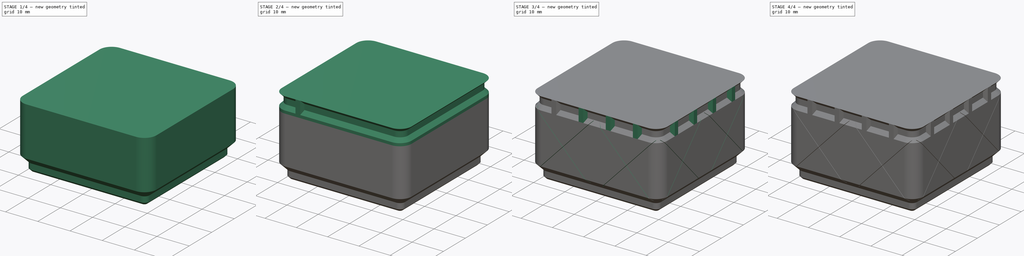
[diagram: build sequence overview — one tinted view per stage of 4, left to right]
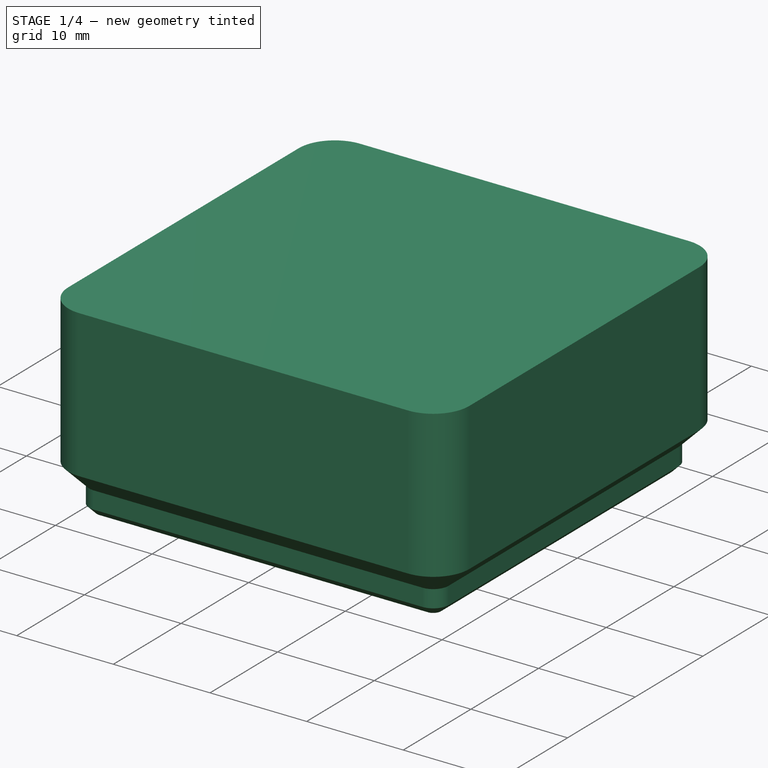
[diagram: stage 1 of 4 — iso view after this stage's code; geometry added in this stage tinted green]
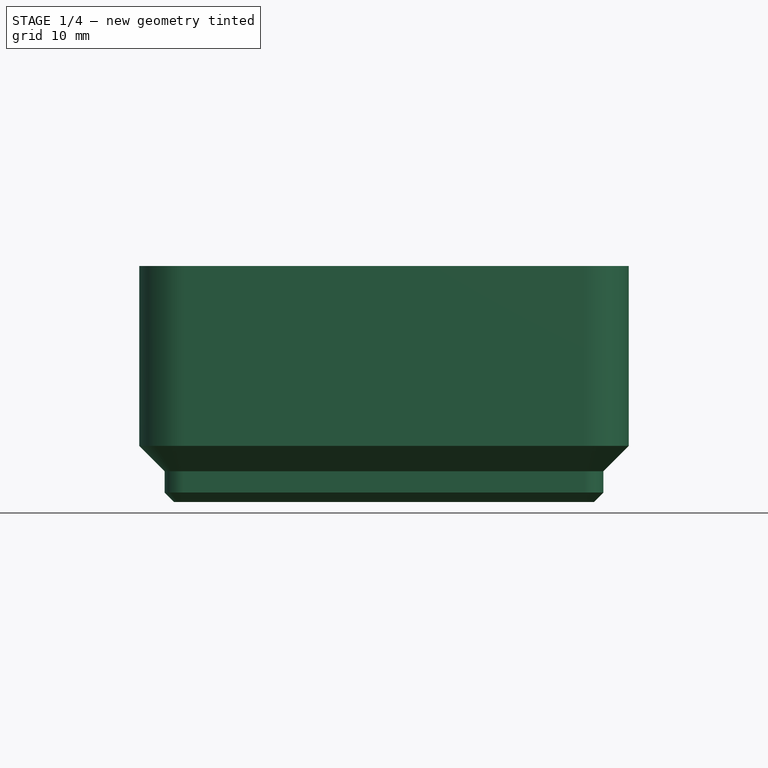
[diagram: stage 1 of 4 — front view after this stage's code; geometry added in this stage tinted green]
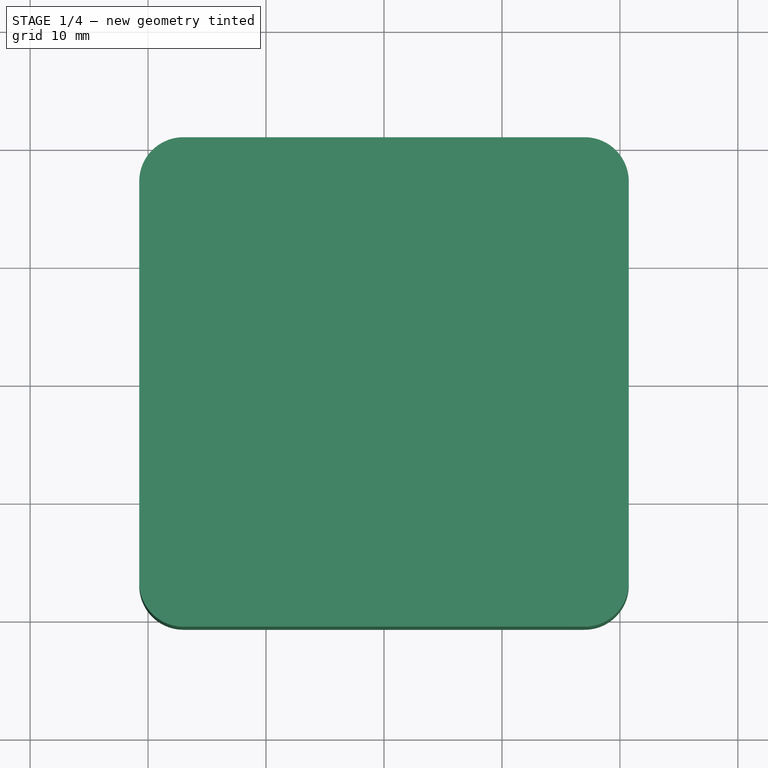
[diagram: stage 1 of 4 — top view after this stage's code; geometry added in this stage tinted green]
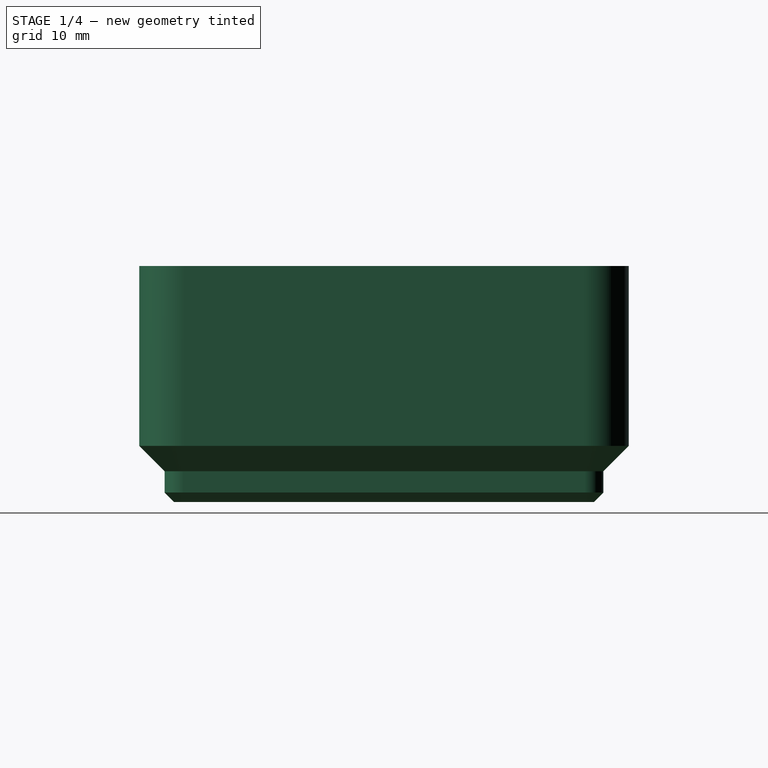
[diagram: stage 1 of 4 — right view after this stage's code; geometry added in this stage tinted green]
FCSTD DOCUMENT  (FreeCAD 0.21R33771 (Git))
Label: Parametric_VaseMode-Bin
License: All rights reserved
LicenseURL: http://en.wikipedia.org/wiki/All_rights_reserved
objects: Sketcher::SketchObject×10, PartDesign::Mirrored×5, PartDesign::Pad×3, PartDesign::Pocket×3, PartDesign::MultiTransform×2, Spreadsheet::Sheet×1, PartDesign::SubtractivePipe×1, PartDesign::AdditivePipe×1, PartDesign::Plane×1, PartDesign::LinearPattern×1, PartDesign::Body×1
note: 36 computed .brp shape members not serialized (recipe doc carries the construction recipe); baked Part::Feature solids carry a one-line shape summary decoded from their .brp

FEATURE [Spreadsheet::Sheet] Spreadsheet  label="data"
  cells = A2='z_units; B2(z_units)=3; C2='     Minimum value is 2; A3='wall_thickness; B3(wall_thickness)==0.75 mm; C3='     Whatever you have set in your slicer - Typically 110-125% of nozzle diameter; A4='toggle_stable_walls; B4(toggle_stable_walls)=1; C4='     Optional stabilizing feature for the side walls; A5='toggle_stable_lip; B5(toggle_stable_lip)=1; C5='     Optional stabilizing feature for the top lip; A6='toggle_divider; B6(toggle_divider)=1; C6='     Optional middle divider vane; A7='toggle_tab; B7(toggle_tab)=0; C7='     Optional label tab; A9='eq_walls; B9(eq_walls)==toggle_stable_walls == 1 ? bin_xy / 2 : 10000; C9='     DON'T BREAK THESE FORMULAS; A10='eq_lip; B10(eq_lip)==toggle_stable_lip == 1 ? col_height : col_height * -0.0001; A11='eq_div; B11(eq_div)==toggle_divider == 1 ? 0 mm : 500 mm; A12='eq_tab; B12(eq_tab)==toggle_tab == 1 ? 0 mm : 500 mm; A13='z_unit_val; B13(z_unit_val)==7 mm; A14='bin_xy; B14(bin_xy)==41.5 mm; A15='offset; B15(offset)==0.25 mm; A16='bin_mid; B16(bin_mid)==37.2 mm; A17='top_feature_height; B17(top_feature_height)==4 mm; A18='top_feature_offset; B18(top_feature_offset)==3.1 mm; A19='btm_feature_offset; B19(btm_feature_offset)==2.6 mm; A20='corner_dia; B20(corner_dia)==7.5 mm; A21='support_rad; B21(support_rad)==1.5 mm; A22='cut_dia; B22(cut_dia)==0.1 mm; C22='     Width of the wall-stabilizer feature. Playing around with this is kinda fun; A23='registration_face_depth; B23(registration_face_depth)==bin_xy / 2 - (bin_mid / 2 + offset + wall_thickness); A24='col_height; B24(col_height)==btm_mid + registration_face_depth * 2; A25='tab_length; B25(tab_length)==10 mm; A26='total_bin_height; B26(total_bin_height)==z_unit_val * z_units + top_feature_height; A27='btm_mid; B27(btm_mid)==1.8 mm
FEATURE [Sketcher::SketchObject] Sketch  label="Btm_profile_sk"
  FullyConstrained = true
  MapMode = 5
  Placement = pos=(0,0,0) rot=(1,0,0;1.5708rad)
  Support = -> [XZ_Plane]
  expr: Constraints[9] = <<data>>.bin_xy / 2
  sketch-geometry (5):
    g0: LineSegment StartX=-17.8 StartY=0 StartZ=0 EndX=-18.6 EndY=0.8 EndZ=0
    g1: LineSegment StartX=-18.6 StartY=0.8 StartZ=0 EndX=-18.6 EndY=2.6 EndZ=0
    g2: LineSegment StartX=-18.6 StartY=2.6 StartZ=0 EndX=-20.75 EndY=4.75 EndZ=0
    g3: LineSegment StartX=-20.75 StartY=4.75 StartZ=0 EndX=-20.75 EndY=0 EndZ=0
    g4: LineSegment StartX=-20.75 StartY=0 StartZ=0 EndX=-17.8 EndY=0 EndZ=0
  constraints (15):
    c: PointOnObject(g0,g-1)
    c: Coincident(g0,g1)
    c: Vertical(g1)
    c: Coincident(g1,g2)
    c: Angle(g-2,g0) = 0.785398
    c: Parallel(g0,g2)
    c: DistanceY(g0,g0) = 0.8
    c: DistanceY(g1,g2) = 2.15
    c: DistanceY(g1,g1) = 1.8
    c: DistanceX(g2,g-1) = 20.75
    c: Coincident(g2,g3)
    c: PointOnObject(g3,g-1)
    c: Vertical(g3)
    c: Coincident(g3,g4)
    c: Coincident(g4,g0)
FEATURE [Sketcher::SketchObject] Sketch001  label="Btm_path_sk"
  FullyConstrained = true
  MapMode = 5
  Support = -> [XY_Plane]
  expr: Constraints[21] = <<data>>.bin_xy / 2
  sketch-geometry (10):
    g0: ArcOfCircle CenterX=-17 CenterY=17 CenterZ=0 NormalX=0 NormalY=0 NormalZ=1 AngleXU=0 Radius=3.75 StartAngle=1.5708 EndAngle=3.14159
    g1: LineSegment StartX=-17 StartY=20.75 StartZ=0 EndX=17 EndY=20.75 EndZ=0
    g2: ArcOfCircle CenterX=17 CenterY=17 CenterZ=0 NormalX=0 NormalY=0 NormalZ=1 AngleXU=0 Radius=3.75 StartAngle=5e-16 EndAngle=1.5708
    g3: LineSegment StartX=20.75 StartY=17 StartZ=0 EndX=20.75 EndY=-17 EndZ=0
    g4: ArcOfCircle CenterX=17 CenterY=-17 CenterZ=0 NormalX=0 NormalY=0 NormalZ=1 AngleXU=0 Radius=3.75 StartAngle=4.71239 EndAngle=6.28319
    g5: LineSegment StartX=17 StartY=-20.75 StartZ=0 EndX=-17 EndY=-20.75 EndZ=0
    g6: ArcOfCircle CenterX=-17 CenterY=-17 CenterZ=0 NormalX=0 NormalY=0 NormalZ=1 AngleXU=0 Radius=3.75 StartAngle=3.14159 EndAngle=4.71239
    g7: LineSegment StartX=-20.75 StartY=-17 StartZ=0 EndX=-20.75 EndY=17 EndZ=0
    g8: GeomPoint X=-20.75 Y=20.75 Z=0
    g9: GeomPoint X=20.75 Y=-20.75 Z=0
  constraints (23):
    c: Tangent(g0,g1) = 1.5708
    c: Tangent(g1,g2) = 1.5708
    c: Tangent(g2,g3) = 1.5708
    c: Tangent(g3,g4) = 1.5708
    c: Tangent(g4,g5) = 1.5708
    c: Tangent(g5,g6) = 1.5708
    c: Tangent(g6,g7) = 1.5708
    c: Tangent(g7,g0) = 1.5708
    c: Horizontal(g1)
    c: Horizontal(g5)
    c: Vertical(g3)
    c: Vertical(g7)
    c: Equal(g0,g2)
    c: Equal(g2,g4)
    c: Equal(g4,g6)
    c: PointOnObject(g8,g1)
    c: PointOnObject(g8,g7)
    c: PointOnObject(g9,g3)
    c: PointOnObject(g9,g5)
    c: Symmetric(g2,g6,g-1)
    c: Diameter(g0) = 7.5
    c: DistanceX(g0,g-1) = 20.75
    c: Equal(g1,g3)
FEATURE [Sketcher::SketchObject] Sketch002  label="Bin_body_sk"
  FullyConstrained = true
  MapMode = 5
  Support = -> [XY_Plane]
  expr: Constraints[21] = <<data>>.bin_xy / 2
  sketch-geometry (10):
    g0: ArcOfCircle CenterX=-17 CenterY=17 CenterZ=0 NormalX=0 NormalY=0 NormalZ=1 AngleXU=0 Radius=3.75 StartAngle=1.5708 EndAngle=3.14159
    g1: LineSegment StartX=-17 StartY=20.75 StartZ=0 EndX=17 EndY=20.75 EndZ=0
    g2: ArcOfCircle CenterX=17 CenterY=17 CenterZ=0 NormalX=0 NormalY=0 NormalZ=1 AngleXU=0 Radius=3.75 StartAngle=5e-16 EndAngle=1.5708
    g3: LineSegment StartX=20.75 StartY=17 StartZ=0 EndX=20.75 EndY=-17 EndZ=0
    g4: ArcOfCircle CenterX=17 CenterY=-17 CenterZ=0 NormalX=0 NormalY=0 NormalZ=1 AngleXU=0 Radius=3.75 StartAngle=4.71239 EndAngle=6.28319
    g5: LineSegment StartX=17 StartY=-20.75 StartZ=0 EndX=-17 EndY=-20.75 EndZ=0
    g6: ArcOfCircle CenterX=-17 CenterY=-17 CenterZ=0 NormalX=0 NormalY=0 NormalZ=1 AngleXU=0 Radius=3.75 StartAngle=3.14159 EndAngle=4.71239
    g7: LineSegment StartX=-20.75 StartY=-17 StartZ=0 EndX=-20.75 EndY=17 EndZ=0
    g8: GeomPoint X=-20.75 Y=20.75 Z=0
    g9: GeomPoint X=20.75 Y=-20.75 Z=0
  constraints (23):
    c: Tangent(g0,g1) = 1.5708
    c: Tangent(g1,g2) = 1.5708
    c: Tangent(g2,g3) = 1.5708
    c: Tangent(g3,g4) = 1.5708
    c: Tangent(g4,g5) = 1.5708
    c: Tangent(g5,g6) = 1.5708
    c: Tangent(g6,g7) = 1.5708
    c: Tangent(g7,g0) = 1.5708
    c: Horizontal(g1)
    c: Horizontal(g5)
    c: Vertical(g3)
    c: Vertical(g7)
    c: Equal(g0,g2)
    c: Equal(g2,g4)
    c: Equal(g4,g6)
    c: PointOnObject(g8,g1)
    c: PointOnObject(g8,g7)
    c: PointOnObject(g9,g3)
    c: PointOnObject(g9,g5)
    c: Symmetric(g2,g6,g-1)
    c: Diameter(g0) = 7.5
    c: DistanceX(g0,g-1) = 20.75
    c: Equal(g1,g3)
FEATURE [PartDesign::Pad] Pad  label="Bin_body_pd"
  Direction = (0,0,1)
  Length = 20
  Length2 = 10
  Profile = -> Sketch002
  ReferenceAxis = -> Sketch002 [N_Axis]
  Type = 0
  expr: Length = <<data>>.z_units * <<data>>.z_unit_val - 1 mm
FEATURE [PartDesign::SubtractivePipe] SubtractivePipe  label="Btm_profile_sp"
  AuxilleryCurvelinear = true
  AuxillerySpineTangent = false
  BaseFeature = -> Pad
  Binormal = (0,0,0)
  Mode = 0
  Profile = -> Sketch
  Spine = -> Sketch001
  SpineTangent = false
  Transformation = 0
  Transition = 0
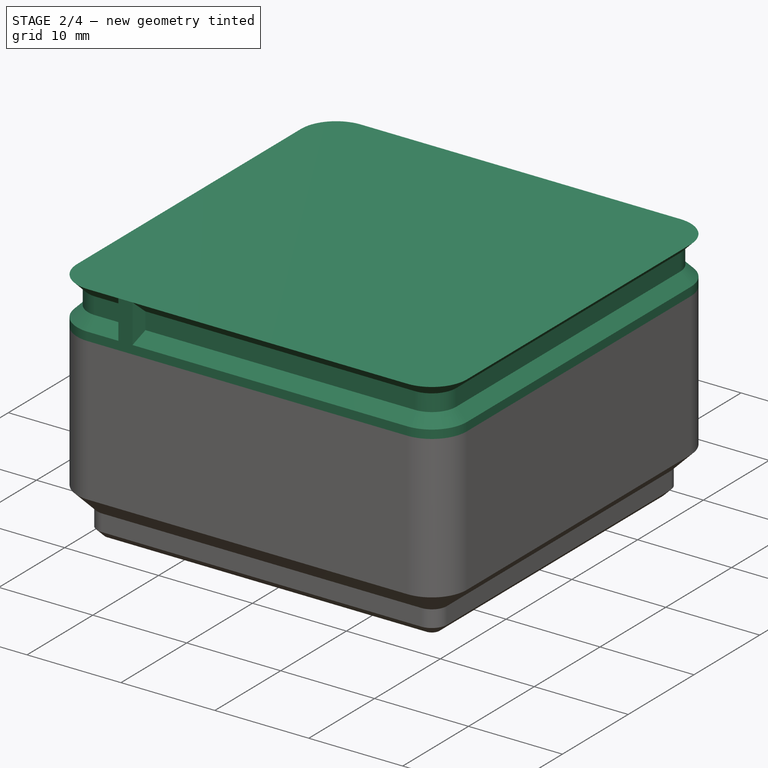
[diagram: stage 2 of 4 — iso view after this stage's code; geometry added in this stage tinted green]
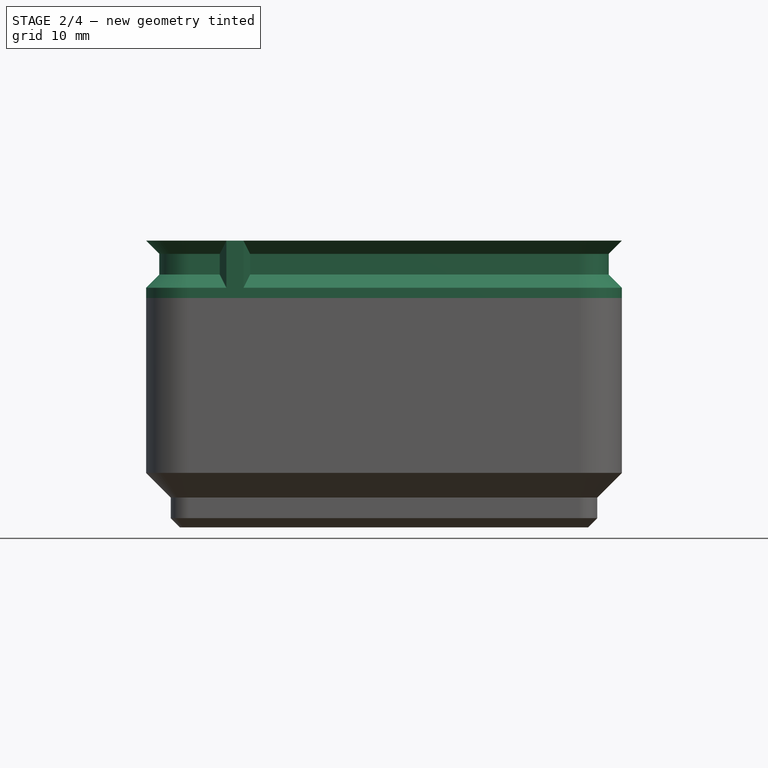
[diagram: stage 2 of 4 — front view after this stage's code; geometry added in this stage tinted green]
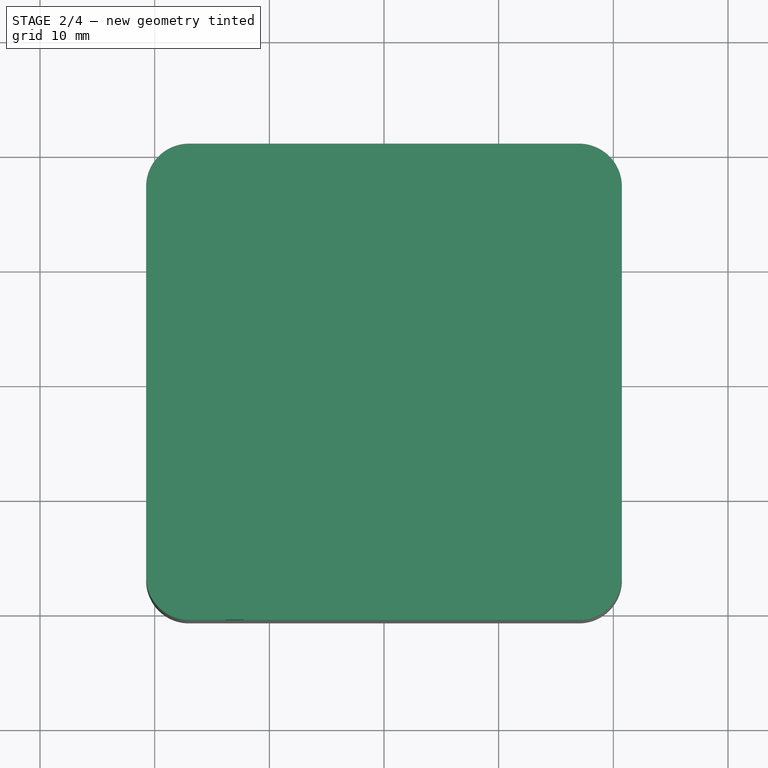
[diagram: stage 2 of 4 — top view after this stage's code; geometry added in this stage tinted green]
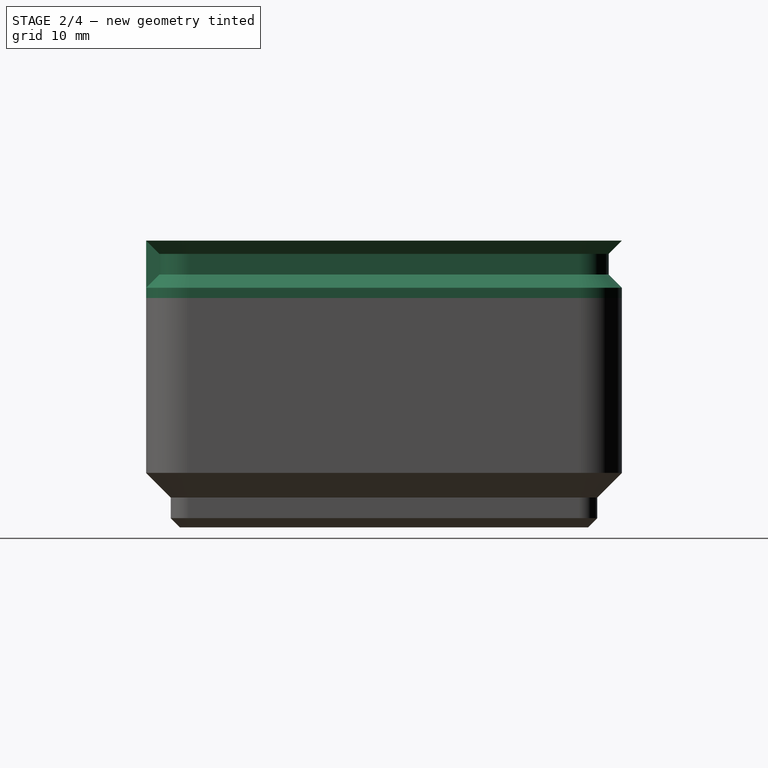
[diagram: stage 2 of 4 — right view after this stage's code; geometry added in this stage tinted green]
FEATURE [Sketcher::SketchObject] Sketch012  label="Top_profile_sk"
  FullyConstrained = true
  MapMode = 5
  Placement = pos=(0,0,0) rot=(1,0,0;1.5708rad)
  Support = -> [XZ_Plane]
  expr: .Constraints.top_edge = <<data>>.total_bin_height
  expr: Constraints[19] = <<data>>.z_units * <<data>>.z_unit_val - 1 mm
  expr: Constraints[20] = <<data>>.registration_face_depth
  expr: Constraints[4] = <<data>>.bin_xy / 2
  sketch-geometry (7):
    g0: LineSegment StartX=-20.75 StartY=20.9 StartZ=0 EndX=-19.6 EndY=22.05 EndZ=0
    g1: LineSegment StartX=-19.6 StartY=22.05 StartZ=0 EndX=-19.6 EndY=23.85 EndZ=0
    g2: LineSegment StartX=-19.6 StartY=23.85 StartZ=0 EndX=-20.75 EndY=25 EndZ=0
    g3: LineSegment StartX=-20.75 StartY=25 StartZ=0 EndX=-17.15 EndY=25 EndZ=0
    g4: LineSegment StartX=-17.15 StartY=25 StartZ=0 EndX=-17.15 EndY=20 EndZ=0
    g5: LineSegment StartX=-20.75 StartY=20.9 StartZ=0 EndX=-20.75 EndY=20 EndZ=0
    g6: LineSegment StartX=-20.75 StartY=20 StartZ=0 EndX=-17.15 EndY=20 EndZ=0
  constraints (21):
    c: Coincident(g0,g1)
    c: Vertical(g1)
    c: Angle(g0,g-2) = 0.785398
    c: DistanceY(g1,g1) = 1.8
    c: DistanceX(g0,g-1) = 20.75
    c: Coincident(g2,g1)
    c: Perpendicular(g0,g2)
    c: Vertical(g2,g0)
    c: DistanceY(g-1,g2) = 25  'top_edge'
    c: Coincident(g2,g3)
    c: Horizontal(g3)
    c: Coincident(g3,g4)
    c: Vertical(g4)
    c: DistanceX(g3,g3) = 3.6
    c: Coincident(g0,g5)
    c: Vertical(g5)
    c: Coincident(g5,g6)
    c: Coincident(g6,g4)
    c: Horizontal(g6)
    c: DistanceY(g-1,g4) = 20
    c: DistanceX(g0,g0) = 1.15
FEATURE [Sketcher::SketchObject] Sketch013  label="Top_path_sk"
  AttachmentOffset = pos=(0,0,25) rot=(0,0,1;0rad)
  FullyConstrained = true
  MapMode = 5
  Placement = pos=(0,0,25) rot=(0,0,1;0rad)
  Support = -> [XY_Plane]
  expr: .AttachmentOffset.Base.z = Sketch012.Constraints.top_edge
  expr: Constraints[21] = <<data>>.bin_xy / 2
  sketch-geometry (10):
    g0: ArcOfCircle CenterX=-17 CenterY=17 CenterZ=0 NormalX=0 NormalY=0 NormalZ=1 AngleXU=0 Radius=3.75 StartAngle=1.5708 EndAngle=3.14159
    g1: LineSegment StartX=-17 StartY=20.75 StartZ=0 EndX=17 EndY=20.75 EndZ=0
    g2: ArcOfCircle CenterX=17 CenterY=17 CenterZ=0 NormalX=0 NormalY=0 NormalZ=1 AngleXU=0 Radius=3.75 StartAngle=5e-16 EndAngle=1.5708
    g3: LineSegment StartX=20.75 StartY=17 StartZ=0 EndX=20.75 EndY=-17 EndZ=0
    g4: ArcOfCircle CenterX=17 CenterY=-17 CenterZ=0 NormalX=0 NormalY=0 NormalZ=1 AngleXU=0 Radius=3.75 StartAngle=4.71239 EndAngle=6.28319
    g5: LineSegment StartX=17 StartY=-20.75 StartZ=0 EndX=-17 EndY=-20.75 EndZ=0
    g6: ArcOfCircle CenterX=-17 CenterY=-17 CenterZ=0 NormalX=0 NormalY=0 NormalZ=1 AngleXU=0 Radius=3.75 StartAngle=3.14159 EndAngle=4.71239
    g7: LineSegment StartX=-20.75 StartY=-17 StartZ=0 EndX=-20.75 EndY=17 EndZ=0
    g8: GeomPoint X=-20.75 Y=20.75 Z=0
    g9: GeomPoint X=20.75 Y=-20.75 Z=0
  constraints (23):
    c: Tangent(g0,g1) = 1.5708
    c: Tangent(g1,g2) = 1.5708
    c: Tangent(g2,g3) = 1.5708
    c: Tangent(g3,g4) = 1.5708
    c: Tangent(g4,g5) = 1.5708
    c: Tangent(g5,g6) = 1.5708
    c: Tangent(g6,g7) = 1.5708
    c: Tangent(g7,g0) = 1.5708
    c: Horizontal(g1)
    c: Horizontal(g5)
    c: Vertical(g3)
    c: Vertical(g7)
    c: Equal(g0,g2)
    c: Equal(g2,g4)
    c: Equal(g4,g6)
    c: PointOnObject(g8,g1)
    c: PointOnObject(g8,g7)
    c: PointOnObject(g9,g3)
    c: PointOnObject(g9,g5)
    c: Symmetric(g2,g6,g-1)
    c: Diameter(g0) = 7.5
    c: DistanceX(g0,g-1) = 20.75
    c: Equal(g1,g3)
FEATURE [PartDesign::AdditivePipe] AdditivePipe  label="Top_profile_ap"
  AuxilleryCurvelinear = true
  AuxillerySpineTangent = false
  BaseFeature = -> SubtractivePipe
  Binormal = (0,0,0)
  Mode = 0
  Profile = -> Sketch012
  Spine = -> Sketch013
  SpineTangent = false
  Transformation = 0
  Transition = 0
FEATURE [Sketcher::SketchObject] Sketch014
  AttachmentOffset = pos=(0,0,25) rot=(0,0,1;0rad)
  FullyConstrained = true
  MapMode = 5
  Placement = pos=(0,0,25) rot=(0,0,1;0rad)
  Support = -> [XY_Plane]
  expr: .AttachmentOffset.Base.z = Sketch012.Constraints.top_edge
  sketch-geometry (4):
    g0: LineSegment StartX=-18 StartY=18 StartZ=0 EndX=18 EndY=18 EndZ=0
    g1: LineSegment StartX=18 StartY=18 StartZ=0 EndX=18 EndY=-18 EndZ=0
    g2: LineSegment StartX=18 StartY=-18 StartZ=0 EndX=-18 EndY=-18 EndZ=0
    g3: LineSegment StartX=-18 StartY=-18 StartZ=0 EndX=-18 EndY=18 EndZ=0
  constraints (11):
    c: Coincident(g0,g1)
    c: Coincident(g1,g2)
    c: Coincident(g2,g3)
    c: Coincident(g3,g0)
    c: Horizontal(g0)
    c: Horizontal(g2)
    c: Vertical(g1)
    c: Vertical(g3)
    c: Symmetric(g0,g2,g-1)
    c: Equal(g0,g1)
    c: DistanceX(g0,g0) = 36
FEATURE [PartDesign::Pad] Pad001  label="Top_fill_pd"
  BaseFeature = -> AdditivePipe
  Direction = (0,0,1)
  Length = 11
  Length2 = 10
  Profile = -> Sketch014
  ReferenceAxis = -> Sketch014 [N_Axis]
  Reversed = true
  Type = 0
  expr: Length = <<data>>.z_unit_val + Spreadsheet.top_feature_height
FEATURE [Sketcher::SketchObject] Sketch015  label="Support_col_sk"
  AttachmentOffset = pos=(-13,0,20.9) rot=(0,0,1;0rad)
  FullyConstrained = true
  MapMode = 5
  Placement = pos=(-13,0,20.9) rot=(0,0,1;0rad)
  Support = -> [XY_Plane]
  expr: .AttachmentOffset.Base.z = <<data>>.z_units * <<data>>.z_unit_val + <<data>>.top_feature_height - <<data>>.col_height
  expr: Constraints[10] = <<data>>.support_rad
  expr: Constraints[11] = <<data>>.support_rad * 3
  expr: Constraints[12] = <<data>>.support_rad
  expr: Constraints[15] = <<data>>.support_rad
  expr: Constraints[9] = <<data>>.bin_xy / 2 - <<data>>.support_rad
  sketch-geometry (6):
    g0: LineSegment StartX=0.75 StartY=-20.75 StartZ=0 EndX=2.25 EndY=-17.75 EndZ=0
    g1: LineSegment StartX=2.25 StartY=-17.75 StartZ=0 EndX=-2.25 EndY=-17.75 EndZ=0
    g2: LineSegment StartX=-2.25 StartY=-17.75 StartZ=0 EndX=-0.75 EndY=-20.75 EndZ=0
    g3: Circle CenterX=0 CenterY=-19.25 CenterZ=0 NormalX=0 NormalY=0 NormalZ=1 AngleXU=0 Radius=2.70416
    g4: LineSegment StartX=-0.75 StartY=-20.75 StartZ=0 EndX=0.75 EndY=-20.75 EndZ=0
    g5: GeomPoint X=0 Y=-17.75 Z=0
  constraints (16):
    c: Coincident(g0,g1)
    c: Coincident(g1,g2)
    c: PointOnObject(g0,g3)
    c: PointOnObject(g1,g3)
    c: Horizontal(g1)
    c: Coincident(g4,g2)
    c: Coincident(g4,g0)
    c: Symmetric(g0,g2,g-2)
    c: PointOnObject(g3,g-2)
    c: DistanceY(g3,g-1) = 19.25
    c: DistanceY(g0,g3) = 1.5
    c: DistanceX(g1,g1) = 4.5
    c: DistanceX(g4,g4) = 1.5
    c: PointOnObject(g5,g-2)
    c: PointOnObject(g5,g1)
    c: DistanceY(g3,g5) = 1.5
FEATURE [PartDesign::Pad] Pad002  label="Support_col_pd"
  BaseFeature = -> Pad001
  Direction = (0,0,1)
  Length = 4.1
  Length2 = 10
  Profile = -> Sketch015
  ReferenceAxis = -> Sketch015 [N_Axis]
  Type = 0
  expr: Length = <<data>>.eq_lip
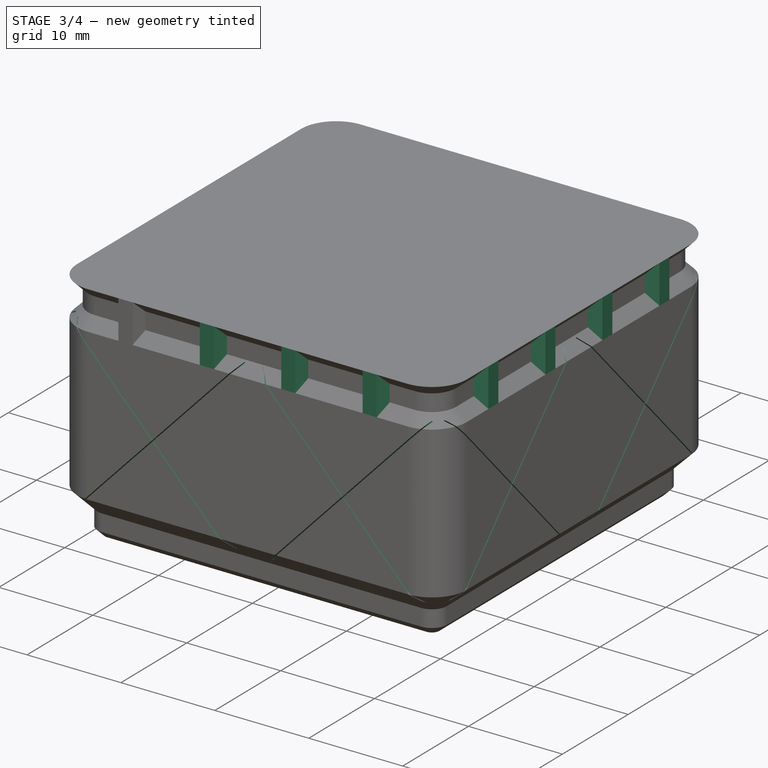
[diagram: stage 3 of 4 — iso view after this stage's code; geometry added in this stage tinted green]
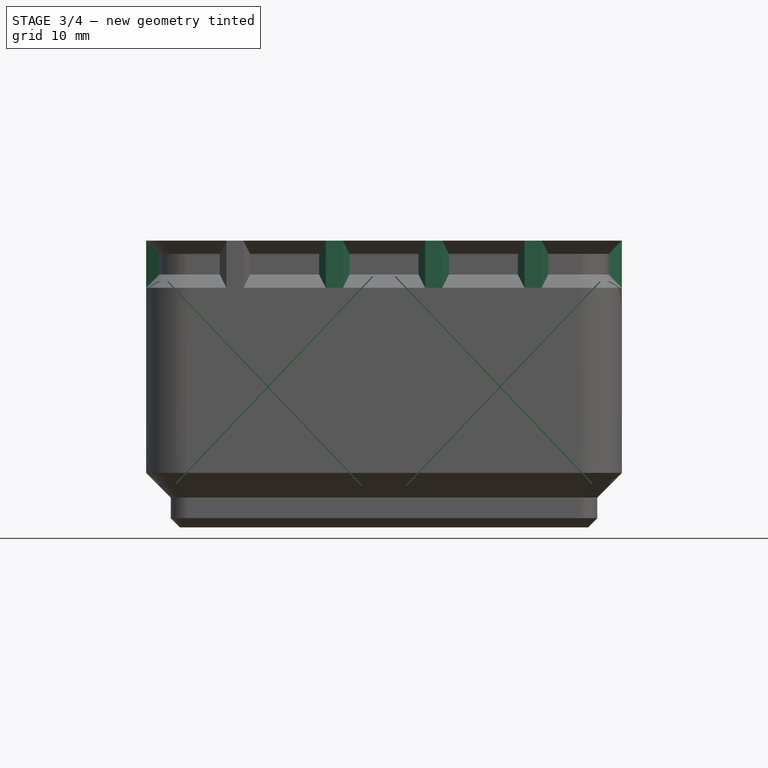
[diagram: stage 3 of 4 — front view after this stage's code; geometry added in this stage tinted green]
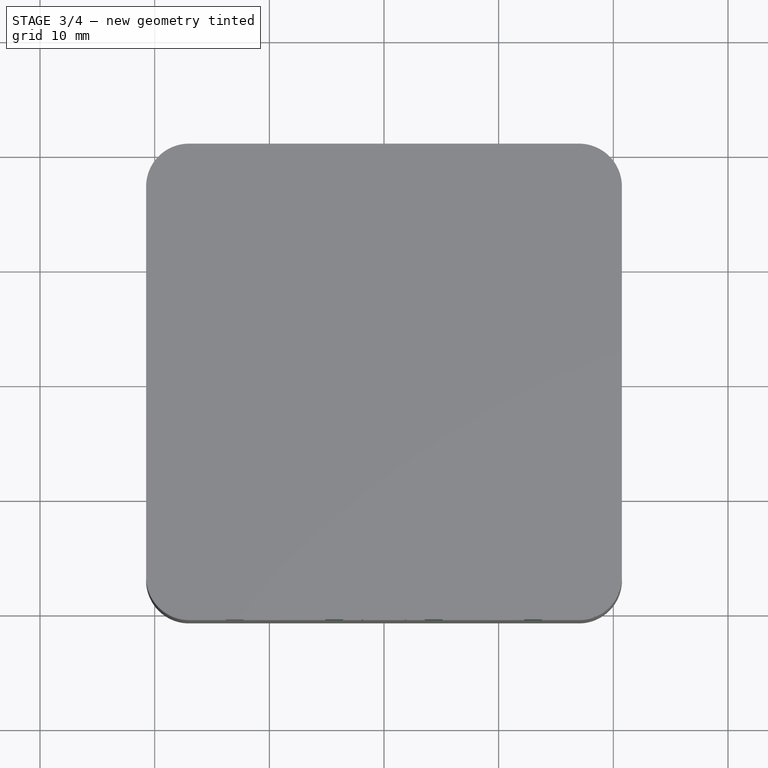
[diagram: stage 3 of 4 — top view after this stage's code; geometry added in this stage tinted green]
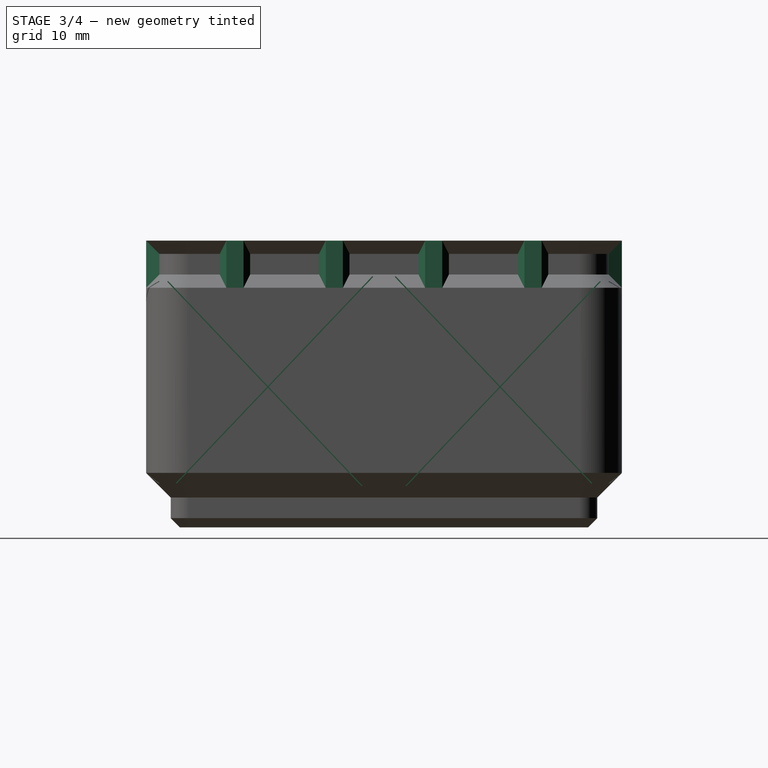
[diagram: stage 3 of 4 — right view after this stage's code; geometry added in this stage tinted green]
FEATURE [PartDesign::Plane] DatumPlane  label="MirrorPlane"
  AttachmentOffset = pos=(0,0,0) rot=(0,1,0;0.785398rad)
  Length = 82.6027
  MapMode = 5
  Placement = pos=(0,0,0) rot=(0.862856,0.357407,0.357407;1.71777rad)
  ResizeMode = 0
  Support = -> [XZ_Plane]
  Width = 61.8921
FEATURE [PartDesign::LinearPattern] LinearPattern
  Direction = -> X_Axis
  Length = 26
  Occurrences = 4
  expr: Length = <<Support_col_sk>>.Placement.Base.x * -2
FEATURE [PartDesign::Mirrored] Mirrored
  MirrorPlane = -> XZ_Plane
FEATURE [PartDesign::Mirrored] Mirrored001
  MirrorPlane = -> DatumPlane
FEATURE [PartDesign::MultiTransform] MultiTransform  label="top_stabilizer_mt"
  BaseFeature = -> Pad002
  Originals = -> [Pad002]
  Transformations = -> [LinearPattern,Mirrored,Mirrored001]
FEATURE [Sketcher::SketchObject] Sketch016
  AttachmentOffset = pos=(0,0,20.75) rot=(0,0,1;0rad)
  FullyConstrained = true
  MapMode = 5
  Placement = pos=(0,-20.75,-4.6e-15) rot=(1,0,0;1.5708rad)
  Support = -> [XZ_Plane]
  expr: .AttachmentOffset.Base.z = <<data>>.eq_walls
  expr: Constraints[21] = <<data>>.cut_dia
  expr: Constraints[34] = <<data>>.wall_thickness + <<data>>.offset
  expr: Constraints[3] = <<data>>.bin_xy / 2 - <<data>>.wall_thickness * 2
  expr: Constraints[4] = <<data>>.btm_feature_offset + <<data>>.cut_dia / 2
  expr: Constraints[5] = <<data>>.z_unit_val * <<data>>.z_units + <<data>>.top_feature_height - <<data>>.top_feature_offset - <<data>>.cut_dia / 2
  sketch-geometry (14):
    g0: LineSegment StartX=-19.25 StartY=21.85 StartZ=0 EndX=-1 EndY=2.65 EndZ=0
    g1: LineSegment StartX=-19.25 StartY=2.65 StartZ=0 EndX=-1 EndY=21.85 EndZ=0
    g2: LineSegment StartX=-19.2138 StartY=21.8844 StartZ=0 EndX=-10.125 EndY=12.3226 EndZ=0
    g3: LineSegment StartX=-10.125 StartY=12.3226 StartZ=0 EndX=-1.03624 EndY=21.8844 EndZ=0
    g4: ArcOfCircle CenterX=-1 CenterY=21.85 CenterZ=0 NormalX=0 NormalY=0 NormalZ=1 AngleXU=0 Radius=0.05 StartAngle=5.52315 EndAngle=8.66474
    g5: LineSegment StartX=-0.963759 StartY=21.8156 StartZ=0 EndX=-10.056 EndY=12.25 EndZ=0
    g6: LineSegment StartX=-10.056 StartY=12.25 StartZ=0 EndX=-0.963759 EndY=2.68445 EndZ=0
    g7: ArcOfCircle CenterX=-19.25 CenterY=21.85 CenterZ=0 NormalX=0 NormalY=0 NormalZ=1 AngleXU=0 Radius=0.05 StartAngle=0.760036 EndAngle=3.90163
    g8: ArcOfCircle CenterX=-1 CenterY=2.65 CenterZ=0 NormalX=0 NormalY=0 NormalZ=1 AngleXU=0 Radius=0.05 StartAngle=3.90163 EndAngle=7.04322
    g9: LineSegment StartX=-1.03624 StartY=2.61555 StartZ=0 EndX=-10.125 EndY=12.1774 EndZ=0
    g10: LineSegment StartX=-10.125 StartY=12.1774 StartZ=0 EndX=-19.2138 EndY=2.61555 EndZ=0
    g11: LineSegment StartX=-19.2862 StartY=2.68445 StartZ=0 EndX=-10.194 EndY=12.25 EndZ=0
    g12: LineSegment StartX=-10.194 StartY=12.25 StartZ=0 EndX=-19.2862 EndY=21.8156 EndZ=0
    g13: ArcOfCircle CenterX=-19.25 CenterY=2.65 CenterZ=0 NormalX=0 NormalY=0 NormalZ=1 AngleXU=0 Radius=0.05 StartAngle=2.38156 EndAngle=5.52315
  constraints (36):
    c: Horizontal(g0,g1)
    c: Vertical(g0,g1)
    c: Horizontal(g0,g1)
    c: DistanceX(g0,g-1) = 19.25
    c: DistanceY(g-1,g0) = 2.65
    c: DistanceY(g-1,g1) = 21.85
    c: Coincident(g2,g3)
    c: Tangent(g3,g4) = 1.5708
    c: Tangent(g4,g5) = 1.5708
    c: Coincident(g5,g6)
    c: Coincident(g7,g0)
    c: Tangent(g7,g2) = 1.5708
    c: Tangent(g6,g8) = 1.5708
    c: Tangent(g8,g9) = 1.5708
    c: Coincident(g9,g10)
    c: Coincident(g11,g12)
    c: Coincident(g13,g1)
    c: Tangent(g12,g7) = 1.5708
    c: Equal(g7,g4)
    c: Equal(g4,g8)
    c: Equal(g8,g13)
    c: Diameter(g7) = 0.1
    c: Horizontal(g5,g11)
    c: Vertical(g2,g9)
    c: Coincident(g8,g0)
    c: Coincident(g4,g1)
    c: Parallel(g5,g3)
    c: Parallel(g10,g11)
    c: Parallel(g6,g9)
    c: Parallel(g6,g0)
    c: Parallel(g11,g1)
    c: Parallel(g2,g0)
    c: Tangent(g13,g11) = 1.5708
    c: Tangent(g13,g10) = 1.5708
    c: DistanceX(g8,g-1) = 1
    c: Vertical(g4,g8)
FEATURE [PartDesign::Pocket] Pocket  label="Wall_stabilizer_pk"
  BaseFeature = -> MultiTransform
  Direction = (0,1,2e-16)
  Length = 1.15
  Length2 = 5
  Profile = -> Sketch016
  ReferenceAxis = -> Sketch016 [N_Axis]
  Type = 0
  expr: Length = <<data>>.registration_face_depth
FEATURE [PartDesign::Mirrored] Mirrored002
  MirrorPlane = -> YZ_Plane
FEATURE [PartDesign::Mirrored] Mirrored003
  MirrorPlane = -> XZ_Plane
FEATURE [PartDesign::Mirrored] Mirrored004
  MirrorPlane = -> DatumPlane
FEATURE [PartDesign::MultiTransform] MultiTransform001  label="Wall_stabilizer_mt"
  BaseFeature = -> Pocket
  Originals = -> [Pocket]
  Refine = true
  Transformations = -> [Mirrored002,Mirrored003,Mirrored004]
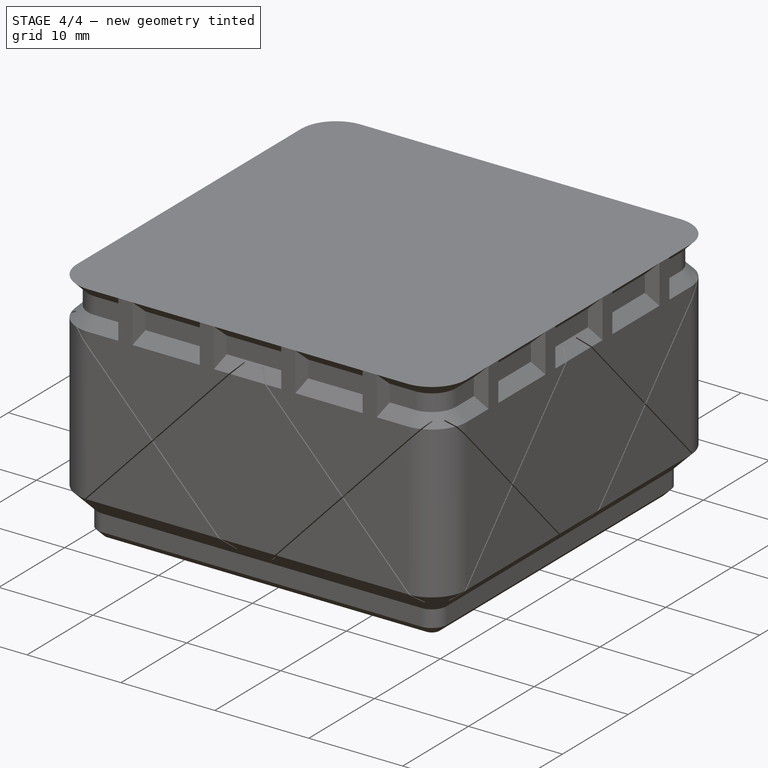
[diagram: stage 4 of 4 — iso view after this stage's code; geometry added in this stage tinted green]
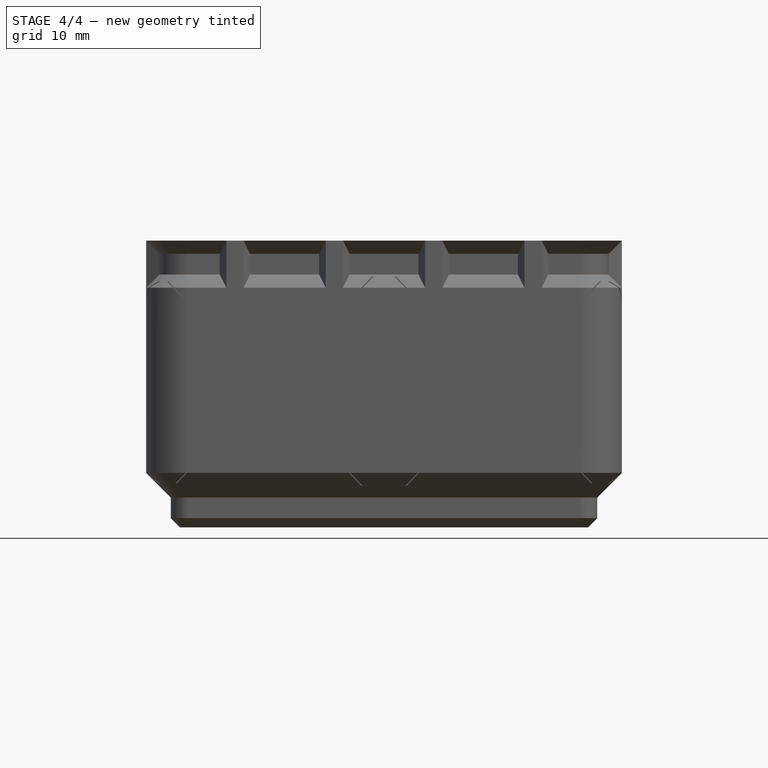
[diagram: stage 4 of 4 — front view after this stage's code; geometry added in this stage tinted green]
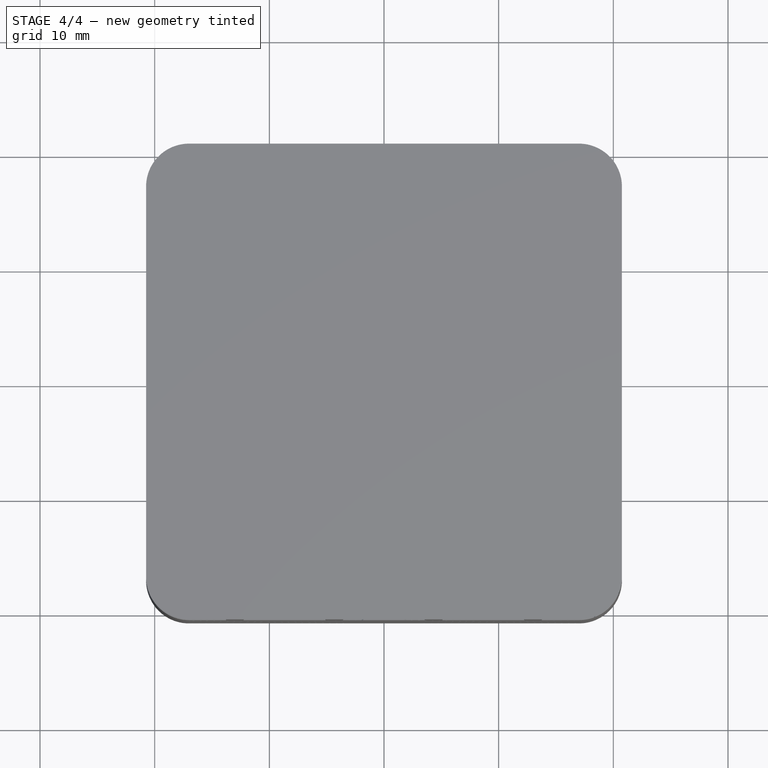
[diagram: stage 4 of 4 — top view after this stage's code; geometry added in this stage tinted green]
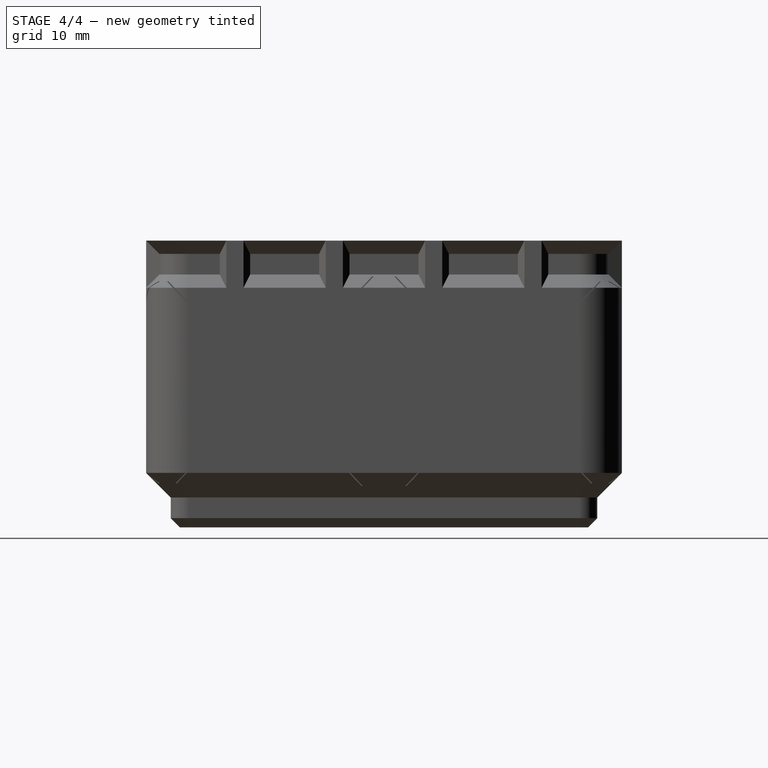
[diagram: stage 4 of 4 — right view after this stage's code; geometry added in this stage tinted green]
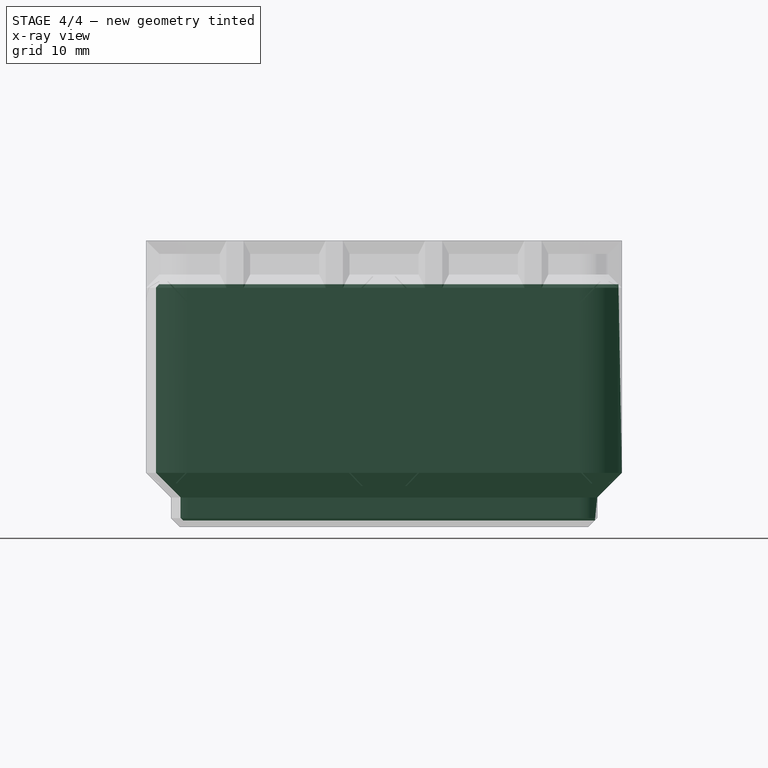
[diagram: stage 4 of 4 — x-ray composite at the right view; earlier geometry ghosted, this stage's added geometry solid]
FEATURE [Sketcher::SketchObject] Sketch017  label="Divider_sk"
  FullyConstrained = true
  MapMode = 5
  Placement = pos=(0,0,0) rot=(0.57735,0.57735,0.57735;2.0944rad)
  Support = -> [YZ_Plane]
  expr: .AttachmentOffset.Base.z = <<data>>.eq_div
  expr: Constraints[17] = <<data>>.bin_xy / 2 - <<data>>.wall_thickness - <<data>>.cut_dia
  expr: Constraints[20] = <<data>>.bin_xy / 2 - <<data>>.registration_face_depth
  expr: Constraints[21] = <<data>>.total_bin_height - <<data>>.col_height
  expr: Constraints[6] = <<data>>.bin_xy / 2
  sketch-geometry (8):
    g0: LineSegment StartX=-19.6 StartY=21.2 StartZ=0 EndX=20.75 EndY=21.2 EndZ=0
    g1: LineSegment StartX=20.75 StartY=21.2 StartZ=0 EndX=20.75 EndY=0.6 EndZ=0
    g2: LineSegment StartX=20.75 StartY=0.6 StartZ=0 EndX=-17.55 EndY=0.6 EndZ=0
    g3: LineSegment StartX=-19.9 StartY=4.75 StartZ=0 EndX=-19.9 EndY=20.9 EndZ=0
    g4: LineSegment StartX=-19.9 StartY=4.75 StartZ=0 EndX=-17.75 EndY=2.6 EndZ=0
    g5: LineSegment StartX=-17.75 StartY=2.6 StartZ=0 EndX=-17.75 EndY=0.8 EndZ=0
    g6: LineSegment StartX=-17.75 StartY=0.8 StartZ=0 EndX=-17.55 EndY=0.6 EndZ=0
    g7: LineSegment StartX=-19.9 StartY=20.9 StartZ=0 EndX=-19.6 EndY=21.2 EndZ=0
  constraints (24):
    c: Coincident(g0,g1)
    c: Coincident(g1,g2)
    c: Horizontal(g2)
    c: Vertical(g1)
    c: Vertical(g3)
    c: Horizontal(g0)
    c: DistanceX(g-1,g0) = 20.75
    c: Coincident(g4,g5)
    c: Vertical(g5)
    c: Coincident(g5,g6)
    c: Parallel(g6,g4)
    c: Angle(g-2,g4) = 0.785398
    c: DistanceY(g5,g5) = 1.8
    c: DistanceY(g4,g4) = 2.15
    c: Coincident(g3,g4)
    c: Coincident(g2,g6)
    c: Angle(g7,g-2) = 0.785398
    c: DistanceX(g7,g-1) = 19.9
    c: Coincident(g0,g7)
    c: Coincident(g3,g7)
    c: DistanceX(g0,g-1) = 19.6
    c: DistanceY(g-1,g3) = 20.9
    c: DistanceY(g-1,g5) = 0.8
    c: DistanceY(g-1,g1) = 0.6
FEATURE [PartDesign::Pocket] Pocket001  label="Divider_pk"
  BaseFeature = -> MultiTransform001
  Direction = (-1,2e-16,-3e-16)
  Length = 0.1
  Length2 = 5
  Midplane = true
  Profile = -> Sketch017
  ReferenceAxis = -> Sketch017 [N_Axis]
  Type = 0
  expr: Length = <<data>>.cut_dia
FEATURE [Sketcher::SketchObject] Sketch018  label="tab_sk"
  AttachmentOffset = pos=(0,0,500) rot=(0,0,1;0rad)
  FullyConstrained = true
  MapMode = 5
  Placement = pos=(500,-1.11e-13,1.11e-13) rot=(0.57735,0.57735,0.57735;2.0944rad)
  Support = -> [YZ_Plane]
  expr: .AttachmentOffset.Base.z = <<data>>.eq_tab
  expr: Constraints[10] = <<data>>.tab_length
  expr: Constraints[6] = <<data>>.z_units * <<data>>.z_unit_val
  expr: Constraints[9] = <<data>>.bin_xy / 2 + <<data>>.offset
  sketch-geometry (4):
    g0: LineSegment StartX=21 StartY=21 StartZ=0 EndX=13.9289 EndY=13.9289 EndZ=0
    g1: LineSegment StartX=13.9289 StartY=13.1289 StartZ=0 EndX=21 EndY=6.05786 EndZ=0
    g2: LineSegment StartX=13.9289 StartY=13.9289 StartZ=0 EndX=13.9289 EndY=13.1289 EndZ=0
    g3: LineSegment StartX=21 StartY=21 StartZ=0 EndX=21 EndY=6.05786 EndZ=0
  constraints (12):
    c: Perpendicular(g1,g0)
    c: Angle(g-2,g1) = 0.785398
    c: Vertical(g2)
    c: Coincident(g0,g2)
    c: Coincident(g1,g2)
    c: DistanceY(g2,g2) = 0.8
    c: DistanceY(g-1,g0) = 21
    c: Vertical(g3)
    c: Coincident(g3,g1)
    c: DistanceX(g-1,g3) = 21
    c: Distance(g0) = 10
    c: Coincident(g0,g3)
FEATURE [PartDesign::Pocket] Pocket002  label="Tab_pk"
  BaseFeature = -> Pocket001
  Direction = (-1,2e-16,-3e-16)
  Length = 36.5
  Length2 = 5
  Midplane = true
  Profile = -> Sketch018
  ReferenceAxis = -> Sketch018 [N_Axis]
  Type = 0
  expr: Length = <<data>>.bin_xy - <<data>>.registration_face_depth * 2 - <<data>>.wall_thickness * 3.6
FEATURE [PartDesign::Body] Body  label="VaseMode_Bin"
  Group = -> [Sketch,Sketch001,Sketch002,Pad,SubtractivePipe,Sketch012,Sketch013,AdditivePipe,Sketch014,Pad001,Sketch015,Pad002,DatumPlane,MultiTransform,LinearPattern,Mirrored,Mirrored001,Sketch016,Pocket,MultiTransform001,Mirrored002,Mirrored003,Mirrored004,Sketch017,Pocket001,Sketch018,Pocket002]
  Origin = -> Origin
  Tip = -> Pocket002
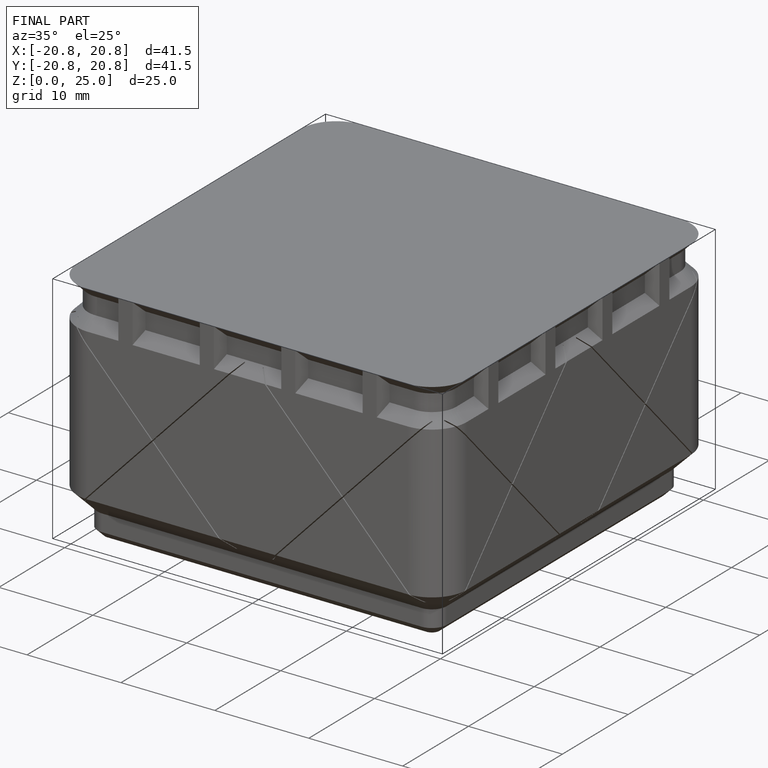
[diagram: finished part — iso view with bounding-box wireframe]
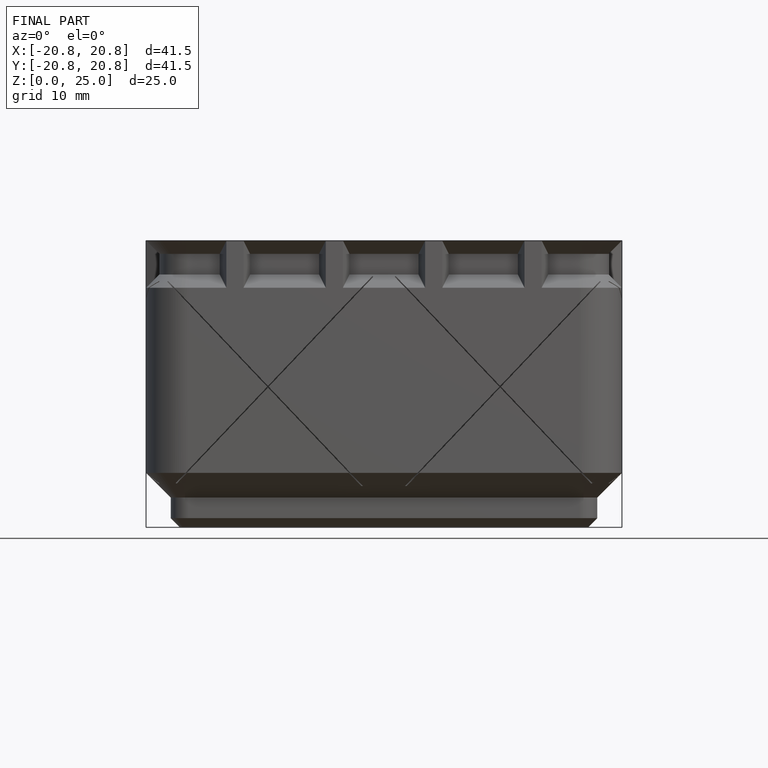
[diagram: finished part — front view with bounding-box wireframe]
